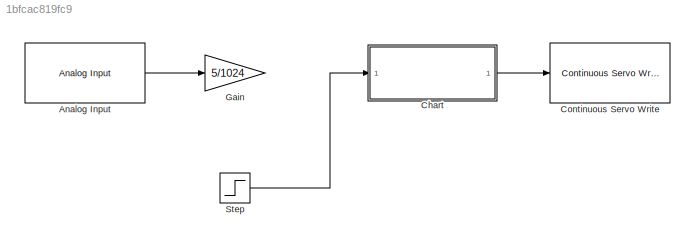
MODEL slx_1bfcac819fc9
KIND model
BLOCK [Reference] Analog Input  REF=arduinolib/Analog Input
  Ports = [0, 1]
  SourceBlock = arduinolib/Analog Input
  SourceType = Arduino Analog Input
  blockPlatform = arduino
  pinNumber = 4
  sampleTime = 1
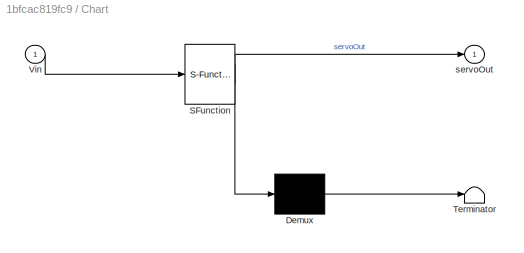
BLOCK [SubSystem] Chart
  ErrorFcn = Stateflow.Translate.translate
  PermitHierarchicalResolution = ExplicitOnly
  Ports = [1, 1]
  RequestExecContextInheritance = off
  SFBlockType = Chart
  TreatAsAtomicUnit = on
BLOCK [Demux] Chart/ Demux 
  Outputs = 1
  Ports = [1, 1]
BLOCK [S-Function] Chart/ SFunction 
  EnableBusSupport = on
  FunctionName = sf_sfun
  PortCounts = [1 2]
  Ports = [1, 2]
  Tag = Stateflow S-Function pressureSwitch 3
BLOCK [Terminator] Chart/ Terminator 
BLOCK [Inport] Chart/Vin
  IconDisplay = Port number
BLOCK [Outport] Chart/servoOut
  IconDisplay = Port number
BLOCK [Reference] Continuous Servo Write  REF=arduinolib/Continuous Servo Write
  Ports = [1]
  SourceBlock = arduinolib/Continuous Servo Write
  SourceType = Arduino Continuous Servo Write
  blockPlatform = arduino
  pinNumber = 4
BLOCK [Gain] Gain
  Gain = 5/1024
  OutDataTypeStr = Inherit: Inherit via internal rule
  ParamDataTypeStr = Inherit: Inherit via internal rule
  SaturateOnIntegerOverflow = off
BLOCK [Step] Step
  After = 5
  SampleTime = 0
  Time = 5
LINE Analog Input:1 -> Gain:1
LINE Chart:1 -> Continuous Servo Write:1
LINE Step:1 -> Chart:1
CHART Chart states=3 transitions=3
  STATE_LABEL 'noOp\nen: servoOut = uint8(0);'
  STATE_LABEL 'raiseFlag\nen: servoOut = uint8(10);'
  STATE_LABEL 'stop\nen: servoOut = uint8(0);'
